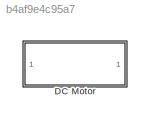
MODEL slx_b4af9e4c95a7
KIND model
CONFIG AbsTol = auto
CONFIG EnableMultiTasking = off
CONFIG FixedStep = auto
CONFIG MaxStep = auto
CONFIG MinStep = auto
CONFIG RelTol = 1e-3
CONFIG SampleTimeConstraint = Unconstrained
CONFIG SolverName = VariableStepAuto
CONFIG StartTime = 0.0
CONFIG StopTime = 10.0
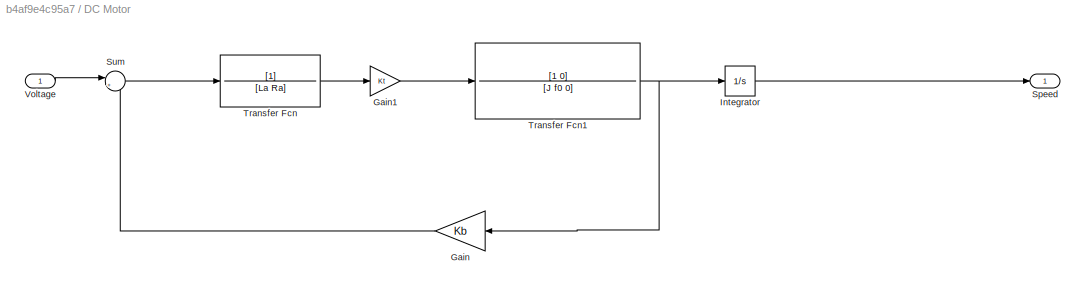
BLOCK [SubSystem] DC Motor
BLOCK [Gain] DC Motor/Gain
  Gain = Kb
  NameLocation = top
BLOCK [Gain] DC Motor/Gain1
  Gain = Kt
BLOCK [Integrator] DC Motor/Integrator
BLOCK [Outport] DC Motor/Speed
BLOCK [Sum] DC Motor/Sum
  Inputs = |+-
BLOCK [TransferFcn] DC Motor/Transfer Fcn
  Denominator = [La Ra]
BLOCK [TransferFcn] DC Motor/Transfer Fcn1
  Denominator = [J f0 0]
  Numerator = [1 0]
BLOCK [Inport] DC Motor/Voltage
LINE DC Motor/Gain1:1 -> DC Motor/Transfer Fcn1:1
LINE DC Motor/Gain:1 -> DC Motor/Sum:2
LINE DC Motor/Integrator:1 -> DC Motor/Speed:1
LINE DC Motor/Sum:1 -> DC Motor/Transfer Fcn:1
NET DC Motor/Transfer Fcn1:1 -> DC Motor/Gain:1, DC Motor/Integrator:1
LINE DC Motor/Transfer Fcn:1 -> DC Motor/Gain1:1
LINE DC Motor/Voltage:1 -> DC Motor/Sum:1
note: NET lines group one-source signal fan-out (src -> all destinations, sorted); 1:1 wires keep LINE
